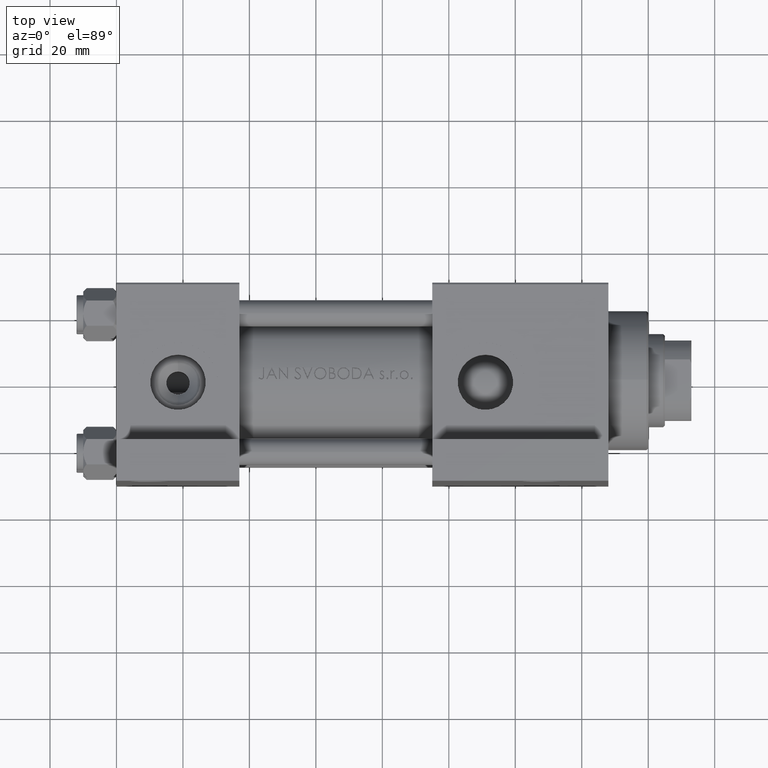
[diagram: clean part render]
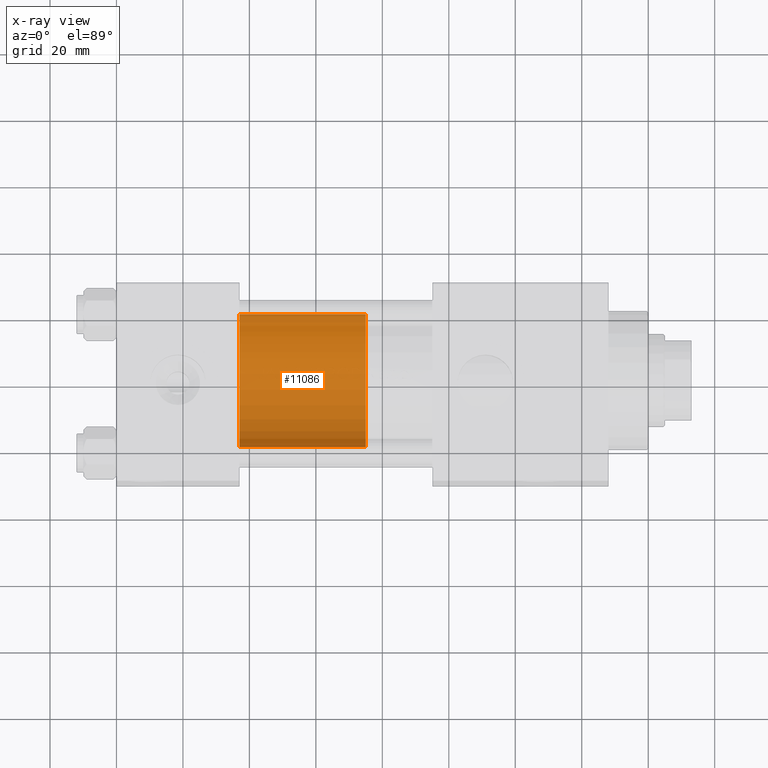
[diagram: x-ray — body ghosted, one internal face saturated and labeled with its STEP entity id]
A machine part, top view, then the same camera in x-ray: the body is ghosted and one INTERNAL B-rep face — a face not visible from any outside direction — is saturated and labeled: STEP entity #11086.
In plain terms, the highlighted cylindrical surface (partial cylindrical patch) has radius 20 mm, axis along (-1, 0, 0).
Its self-contained STEP definition (entity closure, byte-faithful):
#1257 = EDGE_CURVE ( 'NONE', #43736, #21628, #4972, .T. ) ;
#1465 = DIRECTION ( 'NONE',  ( -1.000000000000000000, 0.000000000000000000, 0.000000000000000000 ) ) ;
#2989 = CARTESIAN_POINT ( 'NONE',  ( -20.00000000000000000, 0.000000000000000000, 0.000000000000000000 ) ) ;
#3503 = ORIENTED_EDGE ( 'NONE', *, *, #36761, .F. ) ;
#4972 = CIRCLE ( 'NONE', #12681, 20.00000000000000000 ) ;
#5406 = VECTOR ( 'NONE', #9120, 1000.000000000000000 ) ;
#5657 = EDGE_LOOP ( 'NONE', ( #29573, #34420, #47628, #3503 ) ) ;
#7966 = FACE_OUTER_BOUND ( 'NONE', #5657, .T. ) ;
#8273 = CARTESIAN_POINT ( 'NONE',  ( 20.00000000000000000, 2.449293598294706513E-15, 38.00000000000000000 ) ) ;
#9120 = DIRECTION ( 'NONE',  ( -0.000000000000000000, -0.000000000000000000, -1.000000000000000000 ) ) ;
#9930 = VERTEX_POINT ( 'NONE', #43996 ) ;
#10557 = AXIS2_PLACEMENT_3D ( 'NONE', #45020, #12068, #1465 ) ;
#11086 = ADVANCED_FACE ( 'NONE', ( #7966 ), #34433, .T. ) ;
#12068 = DIRECTION ( 'NONE',  ( -0.000000000000000000, -0.000000000000000000, -1.000000000000000000 ) ) ;
#12241 = DIRECTION ( 'NONE',  ( 0.000000000000000000, 0.000000000000000000, 1.000000000000000000 ) ) ;
#12505 = CARTESIAN_POINT ( 'NONE',  ( -20.00000000000000000, 0.000000000000000000, 38.00000000000000000 ) ) ;
#12681 = AXIS2_PLACEMENT_3D ( 'NONE', #34137, #12241, #29392 ) ;
#19282 = DIRECTION ( 'NONE',  ( 0.000000000000000000, 0.000000000000000000, 1.000000000000000000 ) ) ;
#19358 = LINE ( 'NONE', #8273, #45343 ) ;
#19521 = DIRECTION ( 'NONE',  ( 1.000000000000000000, 0.000000000000000000, 0.000000000000000000 ) ) ;
#19754 = CARTESIAN_POINT ( 'NONE',  ( 0.000000000000000000, 0.000000000000000000, 0.000000000000000000 ) ) ;
#20419 = EDGE_CURVE ( 'NONE', #9930, #21210, #38357, .T. ) ;
#21210 = VERTEX_POINT ( 'NONE', #2989 ) ;
#21523 = CARTESIAN_POINT ( 'NONE',  ( 20.00000000000000000, 2.449293598294706513E-15, 38.00000000000000000 ) ) ;
#21628 = VERTEX_POINT ( 'NONE', #38446 ) ;
#22158 = EDGE_CURVE ( 'NONE', #43736, #9930, #19358, .T. ) ;
#29392 = DIRECTION ( 'NONE',  ( 1.000000000000000000, 0.000000000000000000, 0.000000000000000000 ) ) ;
#29573 = ORIENTED_EDGE ( 'NONE', *, *, #1257, .F. ) ;
#34137 = CARTESIAN_POINT ( 'NONE',  ( 0.000000000000000000, 0.000000000000000000, 38.00000000000000000 ) ) ;
#34420 = ORIENTED_EDGE ( 'NONE', *, *, #22158, .T. ) ;
#34433 = CYLINDRICAL_SURFACE ( 'NONE', #10557, 20.00000000000000000 ) ;
#36761 = EDGE_CURVE ( 'NONE', #21628, #21210, #45456, .T. ) ;
#37623 = DIRECTION ( 'NONE',  ( -0.000000000000000000, -0.000000000000000000, -1.000000000000000000 ) ) ;
#38357 = CIRCLE ( 'NONE', #47626, 20.00000000000000000 ) ;
#38446 = CARTESIAN_POINT ( 'NONE',  ( -20.00000000000000000, 0.000000000000000000, 38.00000000000000000 ) ) ;
#43736 = VERTEX_POINT ( 'NONE', #21523 ) ;
#43996 = CARTESIAN_POINT ( 'NONE',  ( 20.00000000000000000, 2.449293598294706513E-15, 0.000000000000000000 ) ) ;
#45020 = CARTESIAN_POINT ( 'NONE',  ( 0.000000000000000000, 0.000000000000000000, 38.00000000000000000 ) ) ;
#45343 = VECTOR ( 'NONE', #37623, 1000.000000000000000 ) ;
#45456 = LINE ( 'NONE', #12505, #5406 ) ;
#47626 = AXIS2_PLACEMENT_3D ( 'NONE', #19754, #19282, #19521 ) ;
#47628 = ORIENTED_EDGE ( 'NONE', *, *, #20419, .T. ) ;